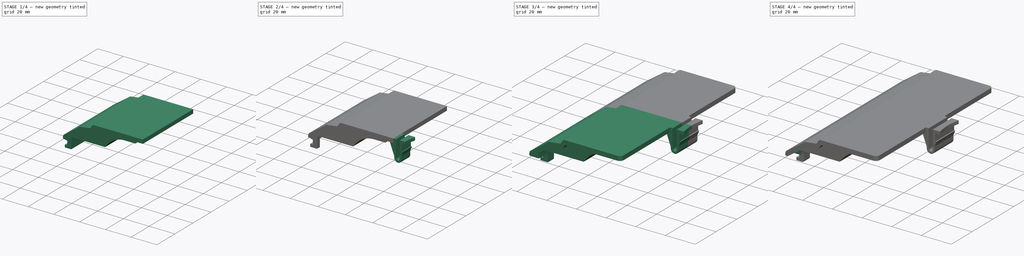
[diagram: build sequence overview — one tinted view per stage of 4, left to right]
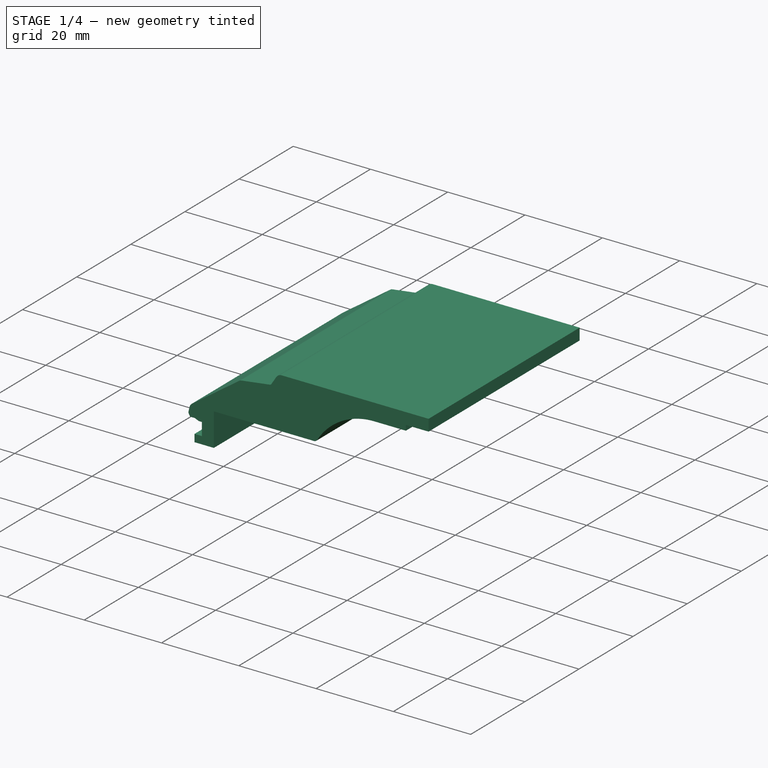
[diagram: stage 1 of 4 — iso view after this stage's code; geometry added in this stage tinted green]
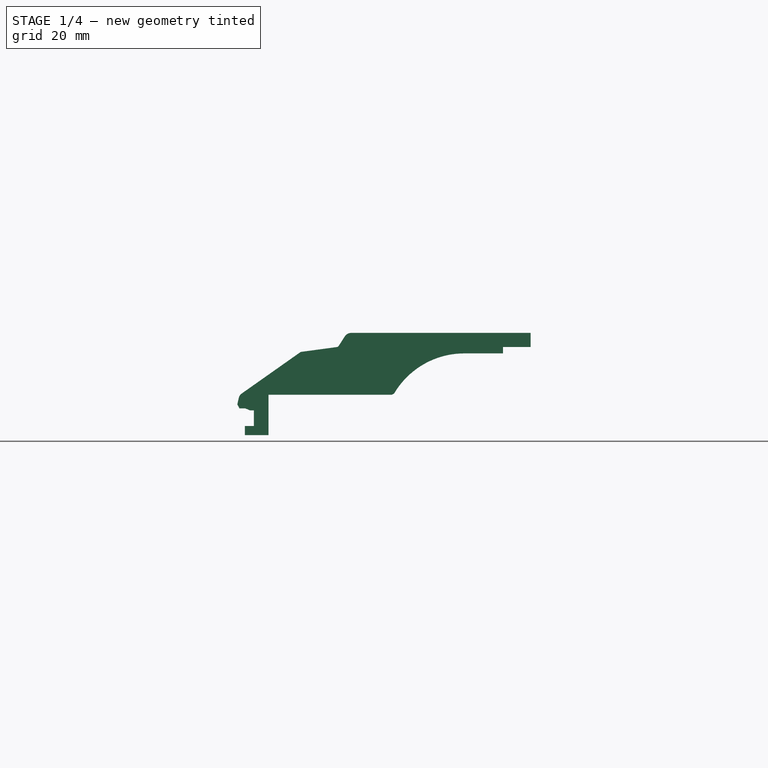
[diagram: stage 1 of 4 — front view after this stage's code; geometry added in this stage tinted green]
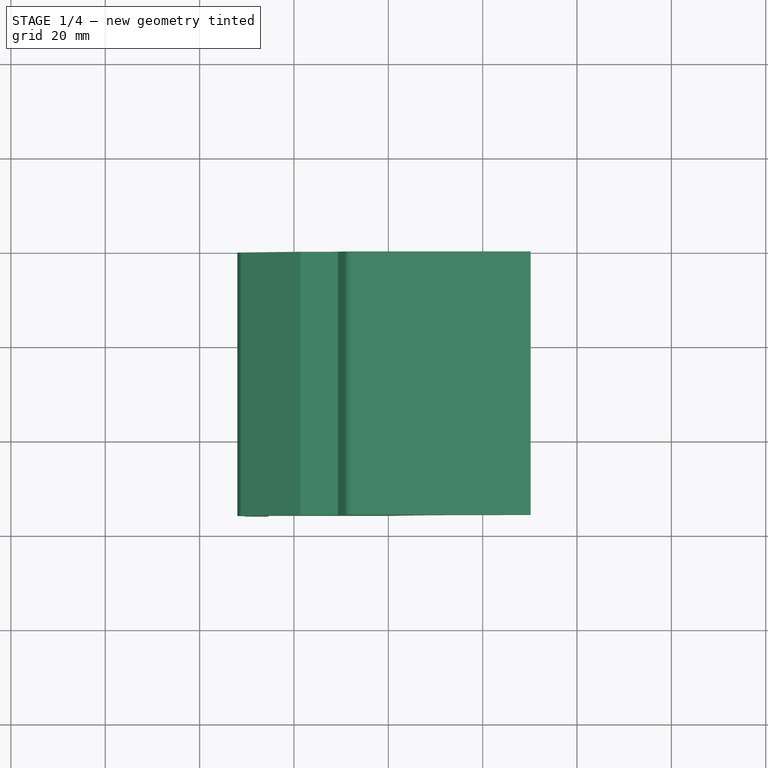
[diagram: stage 1 of 4 — top view after this stage's code; geometry added in this stage tinted green]
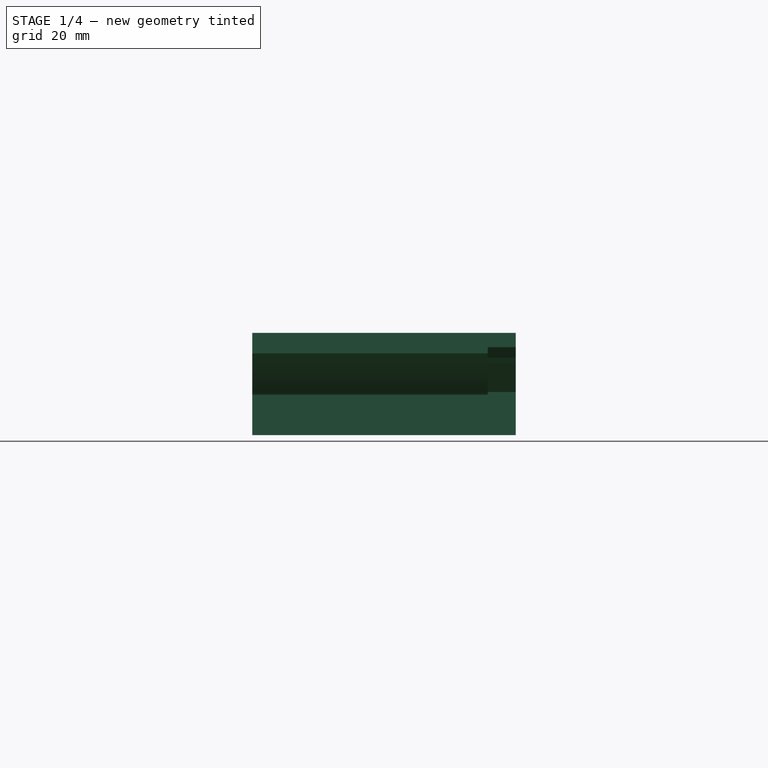
[diagram: stage 1 of 4 — right view after this stage's code; geometry added in this stage tinted green]
FCSTD DOCUMENT  (FreeCAD 0.20R29603 (Git))
Label: battery-cover-stock
License: All rights reserved
LicenseURL: http://en.wikipedia.org/wiki/All_rights_reserved
objects: Sketcher::SketchObject×10, PartDesign::Pocket×5, PartDesign::Pad×4, PartDesign::Mirrored×2, PartDesign::Fillet×2, Image::ImagePlane×1, PartDesign::Plane×1, PartDesign::Body×1
note: 36 computed .brp shape members not serialized (recipe doc carries the construction recipe); baked Part::Feature solids carry a one-line shape summary decoded from their .brp

FEATURE [Sketcher::SketchObject] Sketch
  FullyConstrained = true
  MapMode = 5
  Placement = pos=(0,0,0) rot=(1,0,0;1.5708rad)
  Support = -> [XZ_Plane]
  sketch-geometry (22):
    g0: LineSegment StartX=-7.83 StartY=0 StartZ=0 EndX=30.17 EndY=0 EndZ=0
    g1: LineSegment StartX=30.17 StartY=0 StartZ=0 EndX=30.17 EndY=-3 EndZ=0
    g2: LineSegment StartX=30.17 StartY=-3 StartZ=0 EndX=-7.08833 EndY=-3 EndZ=0
    g3: LineSegment StartX=-32 StartY=0 StartZ=0 EndX=-32 EndY=-16 EndZ=0
    g4: LineSegment StartX=-32 StartY=-16 StartZ=0 EndX=0 EndY=-16 EndZ=0
    g5: LineSegment StartX=-10.5 StartY=0 StartZ=0 EndX=-10.5 EndY=-16 EndZ=0
    g6: ArcOfCircle CenterX=-7.08833 CenterY=-3.58 CenterZ=0 NormalX=0 NormalY=0 NormalZ=1 AngleXU=0 Radius=0.58 StartAngle=1.5708 EndAngle=2.56563
    g7: ArcOfCircle CenterX=-7.83 CenterY=-1.665 CenterZ=0 NormalX=0 NormalY=0 NormalZ=1 AngleXU=0 Radius=1.665 StartAngle=1.5708 EndAngle=2.56563
    g8: LineSegment StartX=-9.22639 StartY=-0.758176 StartZ=0 EndX=-10.5373 EndY=-2.77683 EndZ=0
    g9: ArcOfCircle CenterX=-10.9566 CenterY=-2.50451 CenterZ=0 NormalX=0 NormalY=0 NormalZ=1 AngleXU=0 Radius=0.5 StartAngle=4.84678 EndAngle=5.70723
    g10: LineSegment StartX=-10.8897 StartY=-3 StartZ=0 EndX=-18.3321 EndY=-4.00626 EndZ=0
    g11: ArcOfCircle CenterX=-18.1981 CenterY=-4.99725 CenterZ=0 NormalX=0 NormalY=0 NormalZ=1 AngleXU=0 Radius=1 StartAngle=1.70519 EndAngle=2.18498
    g12: LineSegment StartX=-18.7744 StartY=-4.18 StartZ=0 EndX=-31.05 EndY=-12.8362 EndZ=0
    g13: ArcOfCircle CenterX=-30.1135 CenterY=-14.1643 CenterZ=0 NormalX=0 NormalY=0 NormalZ=1 AngleXU=0 Radius=1.625 StartAngle=2.18498 EndAngle=2.91941
    g14: LineSegment StartX=-31.6986 StartY=-13.8062 StartZ=0 EndX=-32 EndY=-15.1404 EndZ=0
    g15: LineSegment StartX=-30.3308 StartY=-16 StartZ=0 EndX=-31.5569 EndY=-16 EndZ=0
    g16: LineSegment StartX=-31.5569 StartY=-16 StartZ=0 EndX=-32 EndY=-15.1404 EndZ=0
    g17: LineSegment StartX=-30.3308 StartY=-16 StartZ=0 EndX=-16.8371 EndY=-6.48476 EndZ=0
    g18: LineSegment StartX=-16.616 StartY=-6.39789 StartZ=0 EndX=-9.16286 EndY=-5.39019 EndZ=0
    g19: LineSegment StartX=-7.57476 StartY=-3.26411 StartZ=0 EndX=-8.81052 EndY=-5.16701 EndZ=0
    g20: ArcOfCircle CenterX=-9.22986 CenterY=-4.89469 CenterZ=0 NormalX=0 NormalY=0 NormalZ=1 AngleXU=0 Radius=0.5 StartAngle=4.84678 EndAngle=5.70723
    g21: ArcOfCircle CenterX=-16.549 CenterY=-6.89338 CenterZ=0 NormalX=0 NormalY=0 NormalZ=1 AngleXU=0 Radius=0.5 StartAngle=1.70519 EndAngle=2.18498
  constraints (62):
    c: Horizontal(g0)
    c: Coincident(g1,g0)
    c: Vertical(g1)
    c: Coincident(g2,g1)
    c: Horizontal(g2)
    c: Vertical(g3)
    c: DistanceY(g1,g1) = 3
    c: Horizontal(g4)
    c: Distance(g4,g0) = 16
    c: PointOnObject(g0,g-1)
    c: Vertical(g5)
    c: DistanceX(g3,g5) = 21.5
    c: Tangent(g6,g2) = -1.5708
    c: Tangent(g7,g0) = 1.5708
    c: DistanceX(g0,g0) = 38
    c: DistanceX(g3,g-1) = 32
    c: Tangent(g8,g7) = -1.5708
    c: Diameter(g7) = 3.33
    c: Tangent(g9,g8) = 1.5708
    c: Angle(g8,g-1) = 2.14675
    c: Tangent(g10,g9) = 1.5708
    c: Diameter(g9) = 1
    c: Angle(g-1,g10) = 0.13439
    c: DistanceY(g9,g0) = 3
    c: Tangent(g11,g10) = -1.5708
    c: Tangent(g12,g11) = -1.5708
    c: Angle(g12,g-1) = 2.52741
    c: Diameter(g11) = 2
    c: DistanceY(g11,g0) = 4.18
    c: Tangent(g13,g12) = -1.5708
    c: Tangent(g14,g13) = -1.5708
    c: Angle(g14,g3) = 0.22218
    c: Diameter(g13) = 3.25
    c: DistanceX(g3,g12) = 0.95
    c: PointOnObject(g15,g4)
    c: PointOnObject(g15,g4)
    c: Coincident(g16,g15)
    c: Coincident(g14,g16)
    c: PointOnObject(g14,g3)
    c: Angle(g16,g14) = 2.44346
    c: Coincident(g17,g15)
    c: Parallel(g17,g12)
    c: Distance(g11,g17) = 3
    c: Tangent(g19,g6) = -1.5708
    c: Parallel(g18,g10)
    c: Parallel(g8,g19)
    c: Distance(g10,g18) = 2.6
    c: Distance(g8,g19) = 2.75
    c: Diameter(g6) = 1.16
    c: PointOnObject(g5,g-1)
    c: PointOnObject(g3,g-1)
    c: PointOnObject(g4,g3)
    c: PointOnObject(g3,g4)
    c: PointOnObject(g4,g-2)
    c: PointOnObject(g5,g4)
    c: Tangent(g18,g20) = -1.5708
    c: Tangent(g19,g20) = 1.5708
    c: Tangent(g17,g21) = 1.5708
    c: Tangent(g18,g21) = 1.5708
    c: Diameter(g21) = 1
    c: Diameter(g20) = 1
    c: DistanceX(g14,g0) = 24.17
FEATURE [Image::ImagePlane] ImagePlane
  Placement = pos=(0,0,-11.15) rot=(1,0,0;1.5708rad)
  XSize = 65.66
  YSize = 22.6
FEATURE [PartDesign::Pad] Pad
  Direction = (0,-1,-2e-16)
  Length = 55.83
  Length2 = 10
  Placement = pos=(0,0,0) rot=(1,0,0;1.5708rad)
  Profile = -> Sketch
  ReferenceAxis = -> Sketch [N_Axis]
  Type = 0
FEATURE [Sketcher::SketchObject] Sketch001
  ExternalGeometry = -> [Pad]
  FullyConstrained = true
  MapMode = 5
  Placement = pos=(0,-55.83,-1.24e-14) rot=(1,0,0;1.5708rad)
  Support = -> [Pad]
  sketch-geometry (8):
    g0: LineSegment StartX=-30.4 StartY=-21.67 StartZ=0 EndX=-25.4 EndY=-21.67 EndZ=0
    g1: LineSegment StartX=-30.4 StartY=-21.67 StartZ=0 EndX=-30.4 EndY=-19.73 EndZ=0
    g2: LineSegment StartX=-30.4 StartY=-19.73 StartZ=0 EndX=-28.5 EndY=-19.73 EndZ=0
    g3: LineSegment StartX=-28.5 StartY=-19.73 StartZ=0 EndX=-28.5 EndY=-16.43 EndZ=0
    g4: LineSegment StartX=-28.5 StartY=-16.43 StartZ=0 EndX=-29.3 EndY=-16.43 EndZ=0
    g5: LineSegment StartX=-29.3 StartY=-16.43 StartZ=0 EndX=-30.3308 EndY=-16 EndZ=0
    g6: LineSegment StartX=-25.4 StartY=-21.67 StartZ=0 EndX=-25.4 EndY=-12.523 EndZ=0
    g7: LineSegment StartX=-25.4 StartY=-12.523 StartZ=0 EndX=-30.3308 EndY=-16 EndZ=0
  constraints (23):
    c: Horizontal(g0)
    c: DistanceY(g0,g-3) = 5.67
    c: Coincident(g1,g0)
    c: Vertical(g1)
    c: Coincident(g2,g1)
    c: Horizontal(g2)
    c: Coincident(g3,g2)
    c: Vertical(g3)
    c: Coincident(g4,g3)
    c: Horizontal(g4)
    c: Coincident(g5,g4)
    c: Coincident(g5,g-4)
    c: DistanceX(g-6,g0) = 1.6
    c: DistanceY(g1,g1) = 1.94
    c: DistanceX(g0,g0) = 5
    c: Coincident(g6,g0)
    c: PointOnObject(g6,g-4)
    c: Vertical(g6)
    c: Coincident(g7,g6)
    c: Coincident(g7,g5)
    c: DistanceX(g2,g6) = 3.1
    c: DistanceX(g4,g4) = 0.8
    c: DistanceY(g3,g5) = 0.43
FEATURE [PartDesign::Pad] Pad001
  BaseFeature = -> Pad
  Direction = (0,-1,-2e-16)
  Length = 10
  Length2 = 10
  Placement = pos=(0,0,0) rot=(1,0,0;1.5708rad)
  Profile = -> Sketch001
  ReferenceAxis = -> Sketch001 [N_Axis]
  Reversed = true
  Type = 3
  UpToFace = -> Pad [Face20]
FEATURE [Sketcher::SketchObject] Sketch002
  ExternalGeometry = -> [Pad001]
  FullyConstrained = true
  MapMode = 5
  Placement = pos=(0,-55.83,-1.24e-14) rot=(1,0,0;1.5708rad)
  Support = -> [Pad001]
  sketch-geometry (13):
    g0: LineSegment StartX=-25.4 StartY=-13.12 StartZ=0 EndX=0.5 EndY=-13.12 EndZ=0
    g1: LineSegment StartX=-25.4 StartY=-13.12 StartZ=0 EndX=-25.4 EndY=-12.523 EndZ=0
    g2: LineSegment StartX=-25.4 StartY=-12.523 StartZ=0 EndX=-16.8371 EndY=-6.48476 EndZ=0
    g3: LineSegment StartX=-16.616 StartY=-6.39789 StartZ=0 EndX=-9.16286 EndY=-5.39019 EndZ=0
    g4: LineSegment StartX=-8.81052 StartY=-5.16701 StartZ=0 EndX=-7.57476 EndY=-3.26411 EndZ=0
    g5: LineSegment StartX=-7.08833 StartY=-3 StartZ=0 EndX=24.3 EndY=-3 EndZ=0
    g6: ArcOfCircle CenterX=-16.549 CenterY=-6.89338 CenterZ=0 NormalX=0 NormalY=0 NormalZ=1 AngleXU=0 Radius=0.5 StartAngle=1.70519 EndAngle=2.18498
    g7: ArcOfCircle CenterX=-9.22986 CenterY=-4.89469 CenterZ=0 NormalX=0 NormalY=0 NormalZ=1 AngleXU=0 Radius=0.5 StartAngle=4.84678 EndAngle=5.70723
    g8: ArcOfCircle CenterX=-7.08833 CenterY=-3.58 CenterZ=0 NormalX=0 NormalY=0 NormalZ=1 AngleXU=0 Radius=0.58 StartAngle=1.5708 EndAngle=2.56563
    g9: ArcOfCircle CenterX=16.1063 CenterY=-21.6208 CenterZ=0 NormalX=0 NormalY=0 NormalZ=1 AngleXU=0 Radius=17.2708 StartAngle=1.5708 EndAngle=2.59474
    g10: ArcOfCircle CenterX=0.5 CenterY=-12.12 CenterZ=0 NormalX=0 NormalY=0 NormalZ=1 AngleXU=0 Radius=1 StartAngle=4.71239 EndAngle=5.73633
    g11: LineSegment StartX=16.1063 StartY=-4.35 StartZ=0 EndX=24.3 EndY=-4.35 EndZ=0
    g12: LineSegment StartX=24.3 StartY=-4.35 StartZ=0 EndX=24.3 EndY=-3 EndZ=0
  constraints (34):
    c: PointOnObject(g0,g-10)
    c: Horizontal(g0)
    c: Coincident(g1,g0)
    c: Coincident(g1,g-10)
    c: Coincident(g2,g1)
    c: Coincident(g2,g-9)
    c: Coincident(g3,g-9)
    c: Coincident(g3,g-7)
    c: Coincident(g4,g-6)
    c: Coincident(g4,g-5)
    c: Coincident(g5,g-4)
    c: PointOnObject(g5,g-3)
    c: Coincident(g6,g-9)
    c: Coincident(g6,g2)
    c: Coincident(g6,g3)
    c: Coincident(g7,g-6)
    c: Coincident(g7,g3)
    c: Coincident(g7,g4)
    c: Coincident(g8,g-4)
    c: Coincident(g8,g4)
    c: Coincident(g8,g5)
    c: Tangent(g10,g9) = 1.5708
    c: Tangent(g10,g0) = -1.5708
    c: DistanceY(g0,g-1) = 13.12
    c: Diameter(g10) = 2
    c: DistanceX(g-11,g10) = 32.5
    c: DistanceY(g9,g10) = 0.52
    c: Horizontal(g11)
    c: Tangent(g11,g9) = 1.5708
    c: Coincident(g12,g11)
    c: Coincident(g12,g5)
    c: Vertical(g12)
    c: DistanceX(g5,g-3) = 5.87
    c: DistanceY(g11,g-1) = 4.35
FEATURE [PartDesign::Pad] Pad002
  BaseFeature = -> Pad001
  Direction = (0,-1,-2e-16)
  Length = 49.9
  Length2 = 10
  Placement = pos=(0,0,0) rot=(1,0,0;1.5708rad)
  Profile = -> Sketch002
  ReferenceAxis = -> Sketch002 [N_Axis]
  Reversed = true
  Type = 0
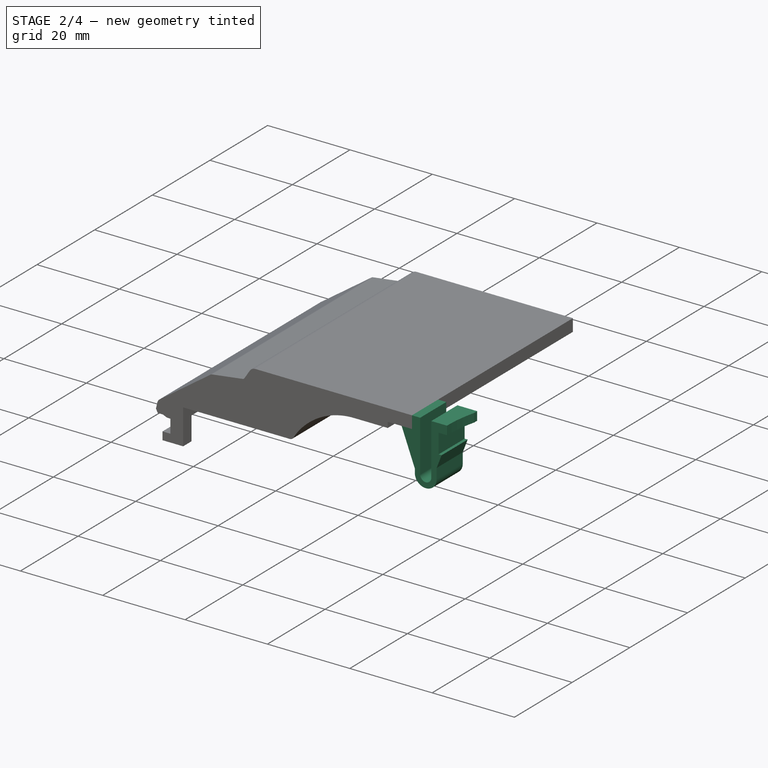
[diagram: stage 2 of 4 — iso view after this stage's code; geometry added in this stage tinted green]
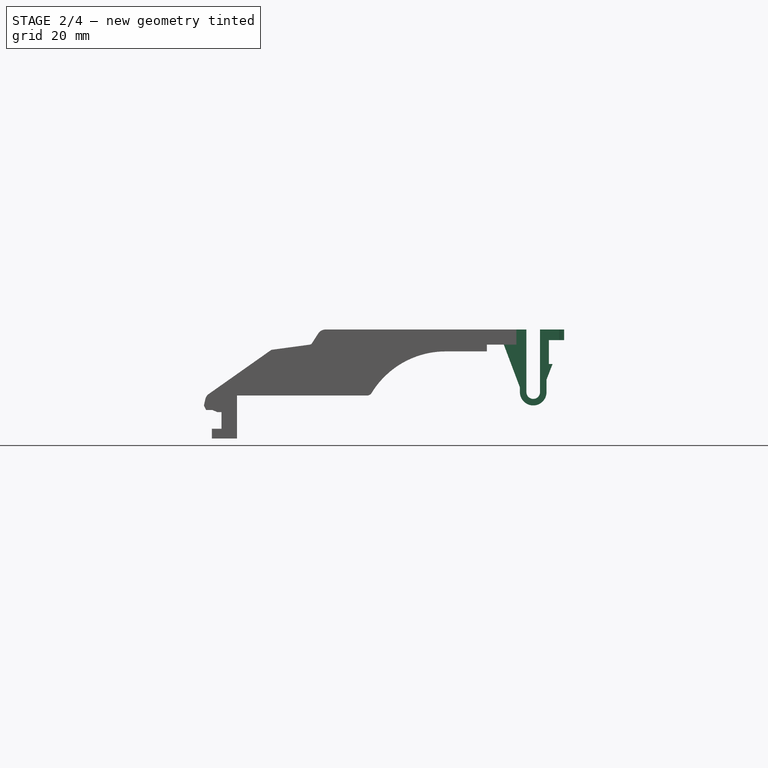
[diagram: stage 2 of 4 — front view after this stage's code; geometry added in this stage tinted green]
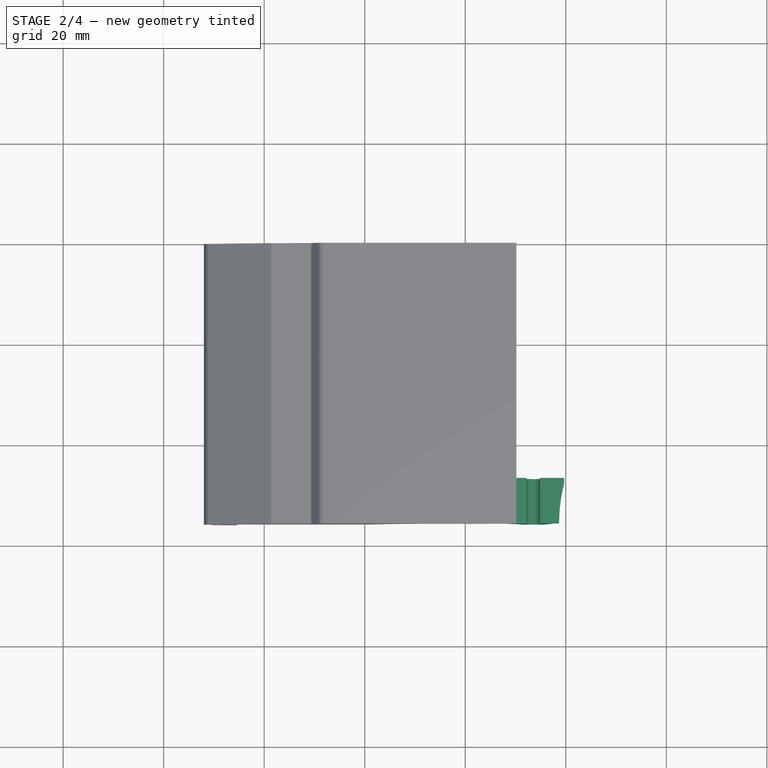
[diagram: stage 2 of 4 — top view after this stage's code; geometry added in this stage tinted green]
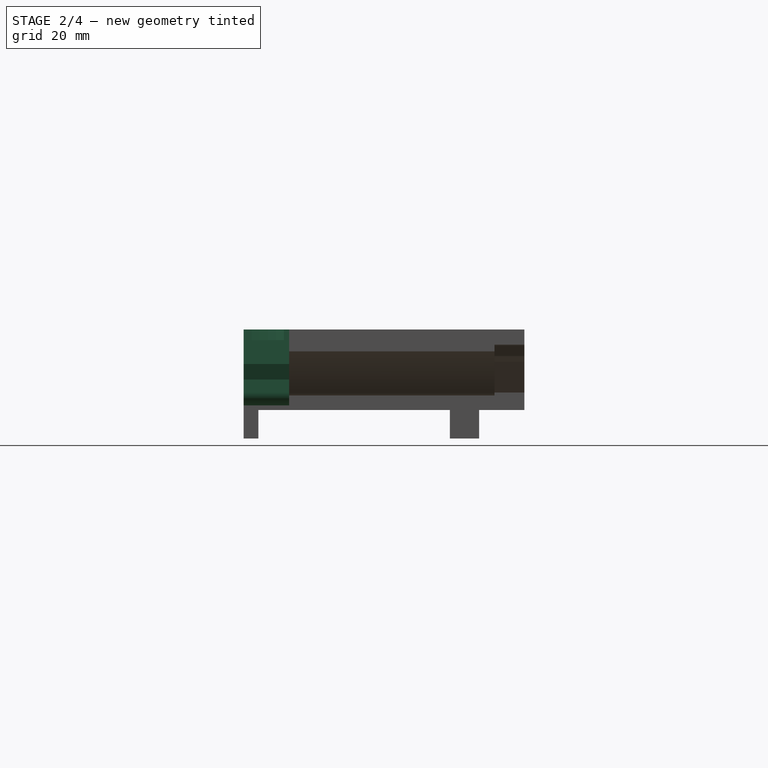
[diagram: stage 2 of 4 — right view after this stage's code; geometry added in this stage tinted green]
FEATURE [Sketcher::SketchObject] Sketch003
  ExternalGeometry = -> [Pad002]
  FullyConstrained = true
  MapMode = 5
  Placement = pos=(0,0,0) rot=(-1,0,0;1.5708rad)
  Support = -> [Pad002]
  sketch-geometry (17):
    g0: LineSegment StartX=30.17 StartY=0 StartZ=0 EndX=32.17 EndY=0 EndZ=0
    g1: LineSegment StartX=27.67 StartY=3 StartZ=0 EndX=30.17 EndY=3 EndZ=0
    g2: LineSegment StartX=30.17 StartY=0 StartZ=0 EndX=30.17 EndY=3 EndZ=0
    g3: LineSegment StartX=27.67 StartY=3 StartZ=0 EndX=30.87 EndY=11.5 EndZ=0
    g4: LineSegment StartX=30.87 StartY=11.5 StartZ=0 EndX=30.87 EndY=12.45 EndZ=0
    g5: ArcOfCircle CenterX=33.52 CenterY=12.45 CenterZ=0 NormalX=0 NormalY=0 NormalZ=1 AngleXU=0 Radius=2.65 StartAngle=0 EndAngle=3.14159
    g6: ArcOfCircle CenterX=33.52 CenterY=12.45 CenterZ=0 NormalX=0 NormalY=0 NormalZ=1 AngleXU=0 Radius=1.35 StartAngle=0 EndAngle=3.14159
    g7: LineSegment StartX=32.17 StartY=12.45 StartZ=0 EndX=32.17 EndY=0 EndZ=0
    g8: LineSegment StartX=34.87 StartY=12.45 StartZ=0 EndX=34.87 EndY=0 EndZ=0
    g9: LineSegment StartX=36.17 StartY=12.45 StartZ=0 EndX=36.17 EndY=9.95 EndZ=0
    g10: LineSegment StartX=36.17 StartY=9.95 StartZ=0 EndX=37.37 EndY=6.85 EndZ=0
    g11: LineSegment StartX=37.37 StartY=6.85 StartZ=0 EndX=36.64 EndY=6.85 EndZ=0
    g12: LineSegment StartX=36.64 StartY=6.85 StartZ=0 EndX=36.64 EndY=2.1 EndZ=0
    g13: LineSegment StartX=36.64 StartY=2.1 StartZ=0 EndX=39.67 EndY=2.1 EndZ=0
    g14: LineSegment StartX=39.67 StartY=2.1 StartZ=0 EndX=39.67 EndY=0 EndZ=0
    g15: LineSegment StartX=39.67 StartY=0 StartZ=0 EndX=34.87 EndY=0 EndZ=0
    g16: LineSegment StartX=33.52 StartY=15.1 StartZ=0 EndX=32.17 EndY=15.1 EndZ=0
  constraints (47):
    c: Coincident(g0,g-3)
    c: PointOnObject(g0,g-1)
    c: PointOnObject(g1,g-4)
    c: Coincident(g1,g-4)
    c: Coincident(g2,g0)
    c: Coincident(g2,g1)
    c: Coincident(g3,g1)
    c: Coincident(g4,g3)
    c: Vertical(g4)
    c: Tangent(g5,g4) = 1.5708
    c: Coincident(g6,g5)
    c: DistanceX(g4,g6) = 1.3
    c: Diameter(g6) = 2.7
    c: Vertical(g7)
    c: Tangent(g7,g6) = -1.5708
    c: Vertical(g8)
    c: Tangent(g8,g6) = 1.5708
    c: Coincident(g7,g0)
    c: Vertical(g9)
    c: Coincident(g10,g9)
    c: Coincident(g11,g10)
    c: Horizontal(g11)
    c: Coincident(g12,g11)
    c: Vertical(g12)
    c: Coincident(g13,g12)
    c: Horizontal(g13)
    c: Coincident(g14,g13)
    c: Vertical(g14)
    c: Coincident(g15,g14)
    c: PointOnObject(g15,g-1)
    c: Horizontal(g15)
    c: Coincident(g8,g15)
    c: DistanceY(g1,g3) = 8.5
    c: PointOnObject(g16,g5)
    c: Horizontal(g16)
    c: Tangent(g16,g5)
    c: PointOnObject(g16,g7)
    c: DistanceX(g0,g0) = 2
    c: DistanceX(g15,g15) = 4.8
    c: DistanceY(g14,g14) = 2.1
    c: DistanceX(g1,g1) = 2.5
    c: DistanceY(g0,g16) = 15.1
    c: Tangent(g9,g5) = 1.5708
    c: DistanceY(g8,g11) = 6.85
    c: DistanceX(g8,g10) = 2.5
    c: DistanceX(g8,g12) = 1.77
    c: DistanceY(g9,g9) = 2.5
FEATURE [Sketcher::SketchObject] Sketch004
  ExternalGeometry = -> [Sketch003,Pad002]
  FullyConstrained = true
  MapMode = 5
  Placement = pos=(0,-55.83,-1.24e-14) rot=(1,0,0;1.5708rad)
  Support = -> [Pad002]
  sketch-geometry (16):
    g0: ArcOfCircle CenterX=33.52 CenterY=-12.45 CenterZ=0 NormalX=0 NormalY=0 NormalZ=1 AngleXU=0 Radius=1.35 StartAngle=3.14159 EndAngle=6.28319
    g1: ArcOfCircle CenterX=33.52 CenterY=-12.45 CenterZ=0 NormalX=0 NormalY=0 NormalZ=1 AngleXU=0 Radius=2.65 StartAngle=3.14159 EndAngle=6.28319
    g2: LineSegment StartX=34.87 StartY=-12.45 StartZ=0 EndX=34.87 EndY=0 EndZ=0
    g3: LineSegment StartX=32.17 StartY=-12.45 StartZ=0 EndX=32.17 EndY=0 EndZ=0
    g4: LineSegment StartX=32.17 StartY=0 StartZ=0 EndX=30.17 EndY=0 EndZ=0
    g5: LineSegment StartX=30.17 StartY=0 StartZ=0 EndX=30.17 EndY=-3 EndZ=0
    g6: LineSegment StartX=30.17 StartY=-3 StartZ=0 EndX=27.67 EndY=-3 EndZ=0
    g7: LineSegment StartX=27.67 StartY=-3 StartZ=0 EndX=30.87 EndY=-11.5 EndZ=0
    g8: LineSegment StartX=30.87 StartY=-11.5 StartZ=0 EndX=30.87 EndY=-12.45 EndZ=0
    g9: LineSegment StartX=36.17 StartY=-12.45 StartZ=0 EndX=36.17 EndY=-9.95 EndZ=0
    g10: LineSegment StartX=36.17 StartY=-9.95 StartZ=0 EndX=37.37 EndY=-6.85 EndZ=0
    g11: LineSegment StartX=37.37 StartY=-6.85 StartZ=0 EndX=36.64 EndY=-6.85 EndZ=0
    g12: LineSegment StartX=36.64 StartY=-6.85 StartZ=0 EndX=36.64 EndY=-2.1 EndZ=0
    g13: LineSegment StartX=36.64 StartY=-2.1 StartZ=0 EndX=39.67 EndY=-2.1 EndZ=0
    g14: LineSegment StartX=39.67 StartY=-2.1 StartZ=0 EndX=39.67 EndY=0 EndZ=0
    g15: LineSegment StartX=39.67 StartY=0 StartZ=0 EndX=34.87 EndY=0 EndZ=0
  constraints (34):
    c: Coincident(g0,g-3)
    c: Coincident(g0,g-3)
    c: Coincident(g1,g0)
    c: Coincident(g1,g-4)
    c: Coincident(g2,g0)
    c: PointOnObject(g2,g-1)
    c: Vertical(g2)
    c: PointOnObject(g3,g-1)
    c: Vertical(g3)
    c: Coincident(g4,g3)
    c: Coincident(g4,g-6)
    c: Coincident(g5,g4)
    c: Coincident(g5,g-6)
    c: Coincident(g6,g5)
    c: Coincident(g6,g-5)
    c: Coincident(g7,g6)
    c: Coincident(g7,g-5)
    c: Coincident(g8,g7)
    c: Coincident(g8,g1)
    c: Coincident(g9,g-9)
    c: Coincident(g10,g9)
    c: Coincident(g10,g-9)
    c: Coincident(g11,g10)
    c: Coincident(g11,g-8)
    c: Coincident(g12,g11)
    c: Coincident(g12,g-8)
    c: Coincident(g13,g12)
    c: Coincident(g13,g-7)
    c: Coincident(g14,g13)
    c: Coincident(g14,g-7)
    c: Coincident(g15,g14)
    c: Coincident(g15,g2)
    c: Tangent(g3,g0) = 1.5708
    c: Tangent(g9,g1) = -1.5708
FEATURE [PartDesign::Pad] Pad003
  BaseFeature = -> Pad002
  Direction = (0,-1,-2e-16)
  Length = 9.05
  Length2 = 10
  Placement = pos=(0,0,0) rot=(1,0,0;1.5708rad)
  Profile = -> Sketch004
  ReferenceAxis = -> Sketch004 [N_Axis]
  Reversed = true
  Type = 0
FEATURE [Sketcher::SketchObject] Sketch005
  ExternalGeometry = -> [Pad003]
  FullyConstrained = true
  MapMode = 5
  Placement = pos=(0,4.8e-15,-21.67) rot=(1,0,0;3.14159rad)
  Support = -> [Pad003]
  sketch-geometry (16):
    g0: LineSegment StartX=-32 StartY=55.83 StartZ=0 EndX=-24 EndY=55.83 EndZ=0
    g1: LineSegment StartX=-24 StartY=55.83 StartZ=0 EndX=-24 EndY=52.915 EndZ=0
    g2: LineSegment StartX=-24 StartY=52.915 StartZ=0 EndX=-32 EndY=52.915 EndZ=0
    g3: LineSegment StartX=-32 StartY=52.915 StartZ=0 EndX=-32 EndY=55.83 EndZ=0
    g4: LineSegment StartX=-32 StartY=14.815 StartZ=0 EndX=-24 EndY=14.815 EndZ=0
    g5: LineSegment StartX=-24 StartY=14.815 StartZ=0 EndX=-24 EndY=8.985 EndZ=0
    g6: LineSegment StartX=-24 StartY=8.985 StartZ=0 EndX=-32 EndY=8.985 EndZ=0
    g7: LineSegment StartX=-32 StartY=8.985 StartZ=0 EndX=-32 EndY=14.815 EndZ=0
    g8: LineSegment StartX=-32 StartY=52.915 StartZ=0 EndX=-24 EndY=52.915 EndZ=0
    g9: LineSegment StartX=-24 StartY=52.915 StartZ=0 EndX=-24 EndY=14.815 EndZ=0
    g10: LineSegment StartX=-24 StartY=14.815 StartZ=0 EndX=-32 EndY=14.815 EndZ=0
    g11: LineSegment StartX=-32 StartY=14.815 StartZ=0 EndX=-32 EndY=52.915 EndZ=0
    g12: LineSegment StartX=-24 StartY=8.985 StartZ=0 EndX=-32 EndY=8.985 EndZ=0
    g13: LineSegment StartX=-32 StartY=8.985 StartZ=0 EndX=-32 EndY=0 EndZ=0
    g14: LineSegment StartX=-32 StartY=0 StartZ=0 EndX=-24 EndY=0 EndZ=0
    g15: LineSegment StartX=-24 StartY=0 StartZ=0 EndX=-24 EndY=8.985 EndZ=0
  constraints (44):
    c: Coincident(g0,g1)
    c: Coincident(g1,g2)
    c: Coincident(g2,g3)
    c: Coincident(g3,g0)
    c: Horizontal(g0)
    c: Horizontal(g2)
    c: Vertical(g1)
    c: Vertical(g3)
    c: PointOnObject(g0,g-3)
    c: Coincident(g4,g5)
    c: Coincident(g5,g6)
    c: Coincident(g6,g7)
    c: Coincident(g7,g4)
    c: Horizontal(g4)
    c: Horizontal(g6)
    c: Vertical(g5)
    c: Vertical(g7)
    c: PointOnObject(g4,g-3)
    c: PointOnObject(g4,g1)
    c: PointOnObject(g-3,g0)
    c: DistanceY(g1,g1) = 2.915
    c: DistanceY(g5,g5) = 5.83
    c: DistanceX(g2,g2) = 8
    c: DistanceY(g4,g2) = 38.1
    c: Coincident(g8,g9)
    c: Coincident(g9,g10)
    c: Coincident(g10,g11)
    c: Coincident(g11,g8)
    c: Horizontal(g8)
    c: Horizontal(g10)
    c: Vertical(g9)
    c: Vertical(g11)
    c: Coincident(g8,g2)
    c: Coincident(g9,g4)
    c: Coincident(g12,g13)
    c: Coincident(g13,g14)
    c: Coincident(g14,g15)
    c: Coincident(g15,g12)
    c: Horizontal(g12)
    c: Horizontal(g14)
    c: Vertical(g13)
    c: Vertical(g15)
    c: Coincident(g12,g5)
    c: Coincident(g13,g-3)
FEATURE [PartDesign::Pocket] Pocket
  BaseFeature = -> Pad003
  Direction = (0,-2e-16,1)
  Length = 0
  Length2 = 5
  Placement = pos=(0,0,0) rot=(1,0,0;1.5708rad)
  Profile = -> Sketch005
  ReferenceAxis = -> Sketch005 [N_Axis]
  Type = 3
  UpToFace = -> Pad003 [Face1]
FEATURE [Sketcher::SketchObject] Sketch006
  ExternalGeometry = -> [Pocket]
  FullyConstrained = true
  MapMode = 5
  Placement = pos=(0,0,0) rot=(0,0,1;3.14159rad)
  Support = -> [Pocket]
  sketch-geometry (4):
    g0: ArcOfCircle CenterX=-71.17 CenterY=55.83 CenterZ=0 NormalX=0 NormalY=0 NormalZ=1 AngleXU=0 Radius=32.5 StartAngle=6.03448 EndAngle=6.28319
    g1: LineSegment StartX=-38.67 StartY=55.83 StartZ=0 EndX=-38.67 EndY=51.03 EndZ=0
    g2: LineSegment StartX=-39.67 StartY=55.83 StartZ=0 EndX=-38.67 EndY=55.83 EndZ=0
    g3: LineSegment StartX=-39.67 StartY=55.83 StartZ=0 EndX=-39.67 EndY=47.83 EndZ=0
  constraints (11):
    c: PointOnObject(g0,g-3)
    c: Vertical(g1)
    c: Equal(g1,g-3)
    c: Tangent(g1,g0) = 1.5708
    c: Coincident(g2,g-3)
    c: Coincident(g2,g0)
    c: Coincident(g3,g2)
    c: Coincident(g3,g0)
    c: Vertical(g3)
    c: DistanceY(g3,g3) = 8
    c: DistanceX(g2,g2) = 1
FEATURE [PartDesign::Pocket] Pocket001
  BaseFeature = -> Pocket
  Direction = (0,2e-16,-1)
  Length = 5
  Length2 = 5
  Placement = pos=(0,0,0) rot=(1,0,0;1.5708rad)
  Profile = -> Sketch006
  ReferenceAxis = -> Sketch006 [N_Axis]
  Type = 1
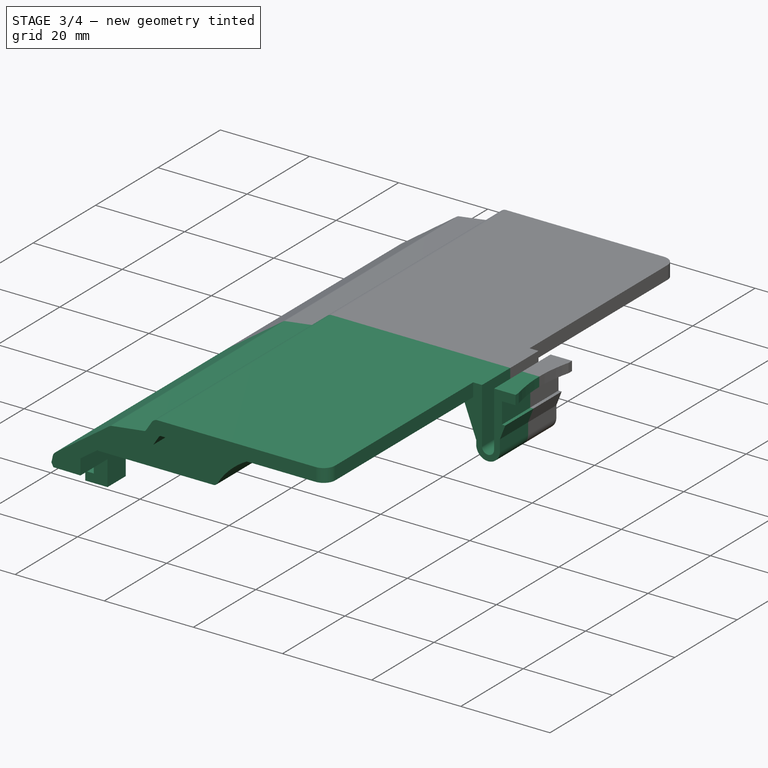
[diagram: stage 3 of 4 — iso view after this stage's code; geometry added in this stage tinted green]
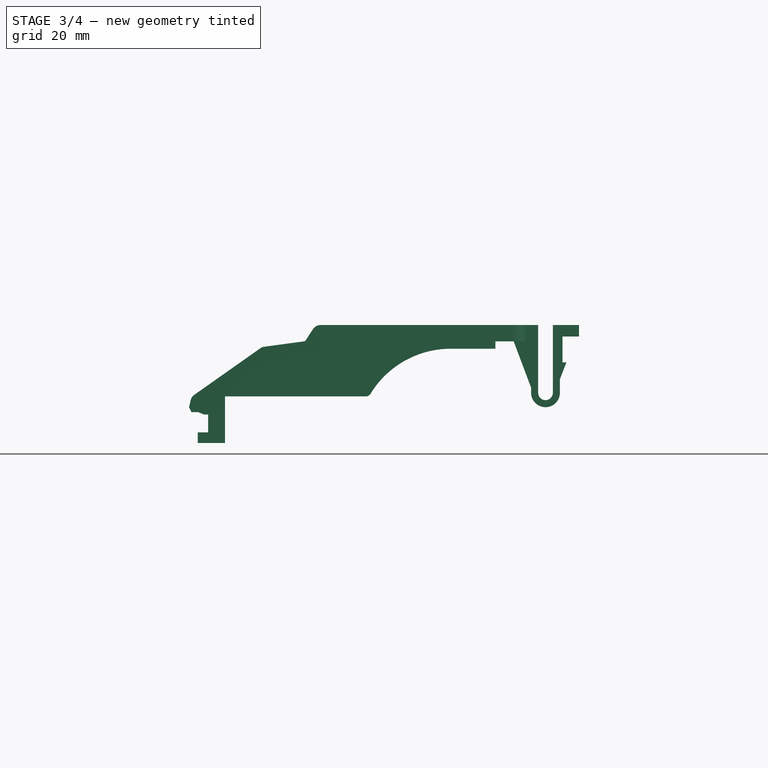
[diagram: stage 3 of 4 — front view after this stage's code; geometry added in this stage tinted green]
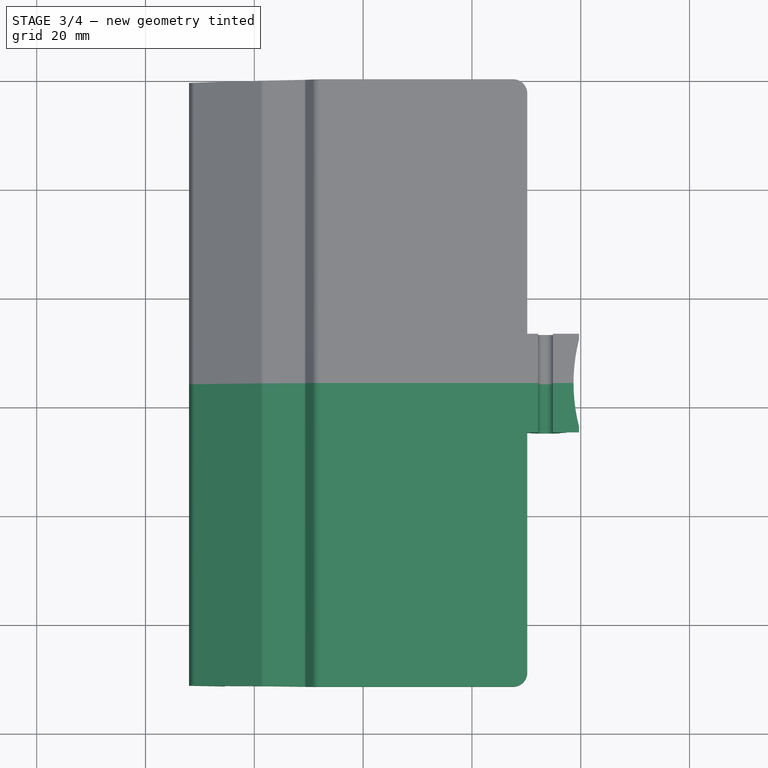
[diagram: stage 3 of 4 — top view after this stage's code; geometry added in this stage tinted green]
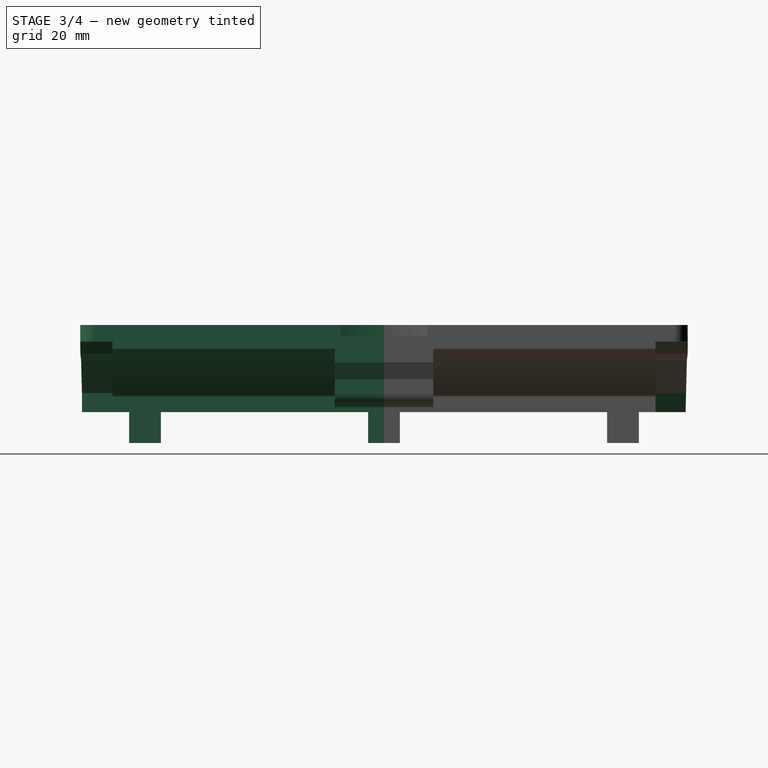
[diagram: stage 3 of 4 — right view after this stage's code; geometry added in this stage tinted green]
FEATURE [PartDesign::Plane] DatumPlane
  Length = 83.6425
  MapMode = 5
  Placement = pos=(0,-55.83,-1.24e-14) rot=(1,0,0;1.5708rad)
  ResizeMode = 0
  Support = -> [Pocket001]
  Width = 61.9725
FEATURE [PartDesign::Mirrored] Mirrored
  BaseFeature = -> Pocket001
  MirrorPlane = -> DatumPlane
  Originals = -> [Pocket001,Pad,Pad001,Pad002,Pad003,Pocket]
  Placement = pos=(0,0,0) rot=(1,0,0;1.5708rad)
FEATURE [Sketcher::SketchObject] Sketch007
  ExternalGeometry = -> [Mirrored]
  FullyConstrained = true
  MapMode = 5
  Placement = pos=(3e-16,5e-16,-2.1) rot=(1,0,0;3.14159rad)
  Support = -> [Mirrored]
  sketch-geometry (2):
    g0: ArcOfCircle CenterX=71.17 CenterY=55.83 CenterZ=0 NormalX=0 NormalY=0 NormalZ=1 AngleXU=0 Radius=32.5 StartAngle=2.89288 EndAngle=3.3903
    g1: LineSegment StartX=39.67 StartY=63.83 StartZ=0 EndX=39.67 EndY=47.83 EndZ=0
  constraints (5):
    c: Coincident(g0,g-3)
    c: Coincident(g0,g-3)
    c: PointOnObject(g0,g-4)
    c: Coincident(g1,g0)
    c: Coincident(g1,g0)
FEATURE [PartDesign::Pocket] Pocket002
  BaseFeature = -> Mirrored
  Direction = (-1e-16,-2e-16,1)
  Length = 5
  Length2 = 5
  Placement = pos=(0,0,0) rot=(1,0,0;1.5708rad)
  Profile = -> Sketch007
  ReferenceAxis = -> Sketch007 [N_Axis]
  Type = 1
FEATURE [Sketcher::SketchObject] Sketch008
  ExternalGeometry = -> [Pocket002]
  FullyConstrained = true
  MapMode = 5
  Support = -> [XY_Plane]
  sketch-geometry (15):
    g0: ArcOfCircle CenterX=27.57 CenterY=-2.6 CenterZ=0 NormalX=0 NormalY=0 NormalZ=1 AngleXU=0 Radius=2.6 StartAngle=2e-16 EndAngle=1.5708
    g1: ArcOfCircle CenterX=27.57 CenterY=-109.06 CenterZ=0 NormalX=0 NormalY=0 NormalZ=1 AngleXU=0 Radius=2.6 StartAngle=4.71239 EndAngle=6.28319
    g2: LineSegment StartX=27.57 StartY=-111.66 StartZ=0 EndX=30.17 EndY=-111.66 EndZ=0
    g3: LineSegment StartX=30.17 StartY=-111.66 StartZ=0 EndX=30.17 EndY=-109.06 EndZ=0
    g4: LineSegment StartX=27.57 StartY=-4.21587e-11 StartZ=0 EndX=30.17 EndY=0 EndZ=0
    g5: LineSegment StartX=30.17 StartY=0 StartZ=0 EndX=30.17 EndY=-2.6 EndZ=0
    g6: LineSegment StartX=-32 StartY=-0.43 StartZ=0 EndX=-7.83 EndY=1e-16 EndZ=0
    g7: LineSegment StartX=-32 StartY=-111.23 StartZ=0 EndX=-7.83 EndY=-111.66 EndZ=0
    g8: LineSegment StartX=-32 StartY=-55.83 StartZ=0 EndX=-32 EndY=-0.43 EndZ=0
    g9: LineSegment StartX=-32 StartY=-55.83 StartZ=0 EndX=-32 EndY=-111.23 EndZ=0
    g10: LineSegment StartX=-7.83 StartY=1e-16 StartZ=0 EndX=-7.83 EndY=1.67 EndZ=0
    g11: LineSegment StartX=-7.83 StartY=1.67 StartZ=0 EndX=-33.83 EndY=1.67 EndZ=0
    g12: LineSegment StartX=-33.83 StartY=1.67 StartZ=0 EndX=-33.83 EndY=-113.33 EndZ=0
    g13: LineSegment StartX=-33.83 StartY=-113.33 StartZ=0 EndX=-7.83 EndY=-113.33 EndZ=0
    g14: LineSegment StartX=-7.83 StartY=-113.33 StartZ=0 EndX=-7.83 EndY=-111.66 EndZ=0
  constraints (38):
    c: Tangent(g1,g-5) = -1.5708
    c: Tangent(g1,g-4) = -1.5708
    c: Tangent(g0,g-1) = 1.5708
    c: Tangent(g0,g-3) = 1.5708
    c: Equal(g0,g1)
    c: Diameter(g1) = 5.2
    c: Coincident(g2,g1)
    c: Coincident(g2,g-5)
    c: Coincident(g3,g2)
    c: Coincident(g3,g1)
    c: Coincident(g4,g0)
    c: Coincident(g4,g-3)
    c: Coincident(g5,g4)
    c: Coincident(g5,g0)
    c: Coincident(g8,g-6)
    c: Coincident(g8,g6)
    c: Coincident(g9,g8)
    c: Coincident(g9,g7)
    c: Equal(g9,g8)
    c: Vertical(g8)
    c: Vertical(g9)
    c: DistanceY(g7,g6) = 110.8
    c: Coincident(g6,g-7)
    c: Coincident(g7,g-8)
    c: Coincident(g10,g6)
    c: Vertical(g10)
    c: Coincident(g11,g10)
    c: Horizontal(g11)
    c: Coincident(g12,g11)
    c: Vertical(g12)
    c: Coincident(g13,g12)
    c: Horizontal(g13)
    c: Coincident(g14,g13)
    c: Coincident(g14,g7)
    c: Vertical(g14)
    c: Equal(g10,g14)
    c: DistanceX(g11,g11) = 26
    c: DistanceY(g12,g12) = 115
FEATURE [PartDesign::Pocket] Pocket003
  BaseFeature = -> Pocket002
  Direction = (0,0,-1)
  Length = 5
  Length2 = 5
  Placement = pos=(0,0,0) rot=(1,0,0;1.5708rad)
  Profile = -> Sketch008
  ReferenceAxis = -> Sketch008 [N_Axis]
  Type = 1
FEATURE [Sketcher::SketchObject] Sketch009
  ExternalGeometry = -> [Pocket003]
  FullyConstrained = true
  MapMode = 5
  Placement = pos=(-0.00247747,0.139257,0) rot=(-0.999921,-0.008894,0.008894;1.57088rad)
  Support = -> [Pocket003]
  sketch-geometry (3):
    g0: LineSegment StartX=-25.4015 StartY=12.523 StartZ=0 EndX=-30.3332 EndY=16 EndZ=0
    g1: LineSegment StartX=-30.3332 StartY=16 StartZ=0 EndX=-25.4015 EndY=16 EndZ=0
    g2: LineSegment StartX=-25.4015 StartY=16 StartZ=0 EndX=-25.4015 EndY=12.523 EndZ=0
  constraints (6):
    c: Coincident(g0,g-4)
    c: Coincident(g0,g-3)
    c: Coincident(g1,g0)
    c: Coincident(g1,g-4)
    c: Coincident(g2,g1)
    c: Coincident(g2,g0)
FEATURE [PartDesign::Pocket] Pocket004
  BaseFeature = -> Pocket003
  Direction = (0,-1,-2e-16)
  Length = 0
  Length2 = 5
  Placement = pos=(0,0,0) rot=(1,0,0;1.5708rad)
  Profile = -> Sketch009
  ReferenceAxis = -> Pocket003 [Edge230]
  Type = 3
  UpToFace = -> Pocket003 [Face52]
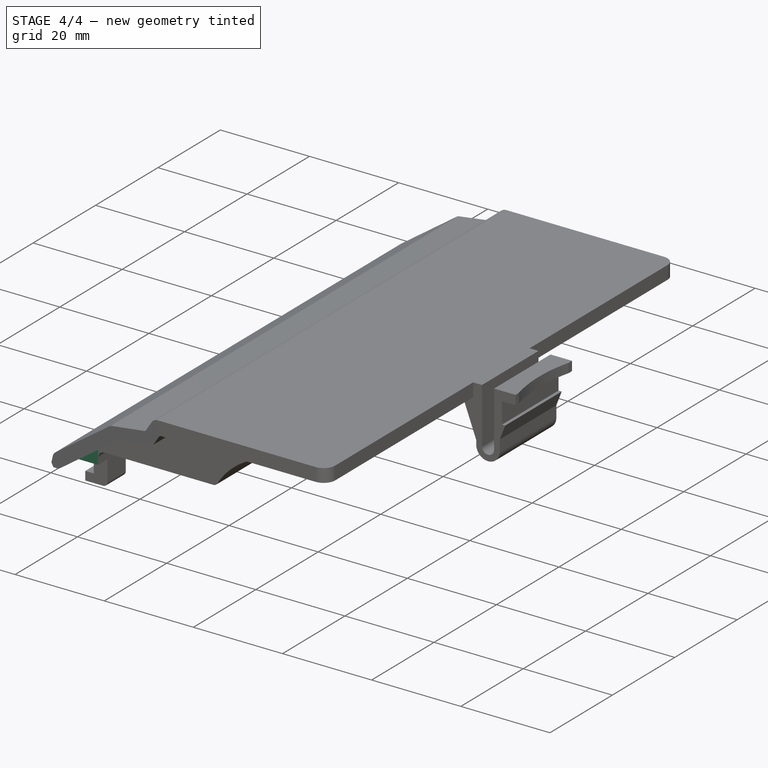
[diagram: stage 4 of 4 — iso view after this stage's code; geometry added in this stage tinted green]
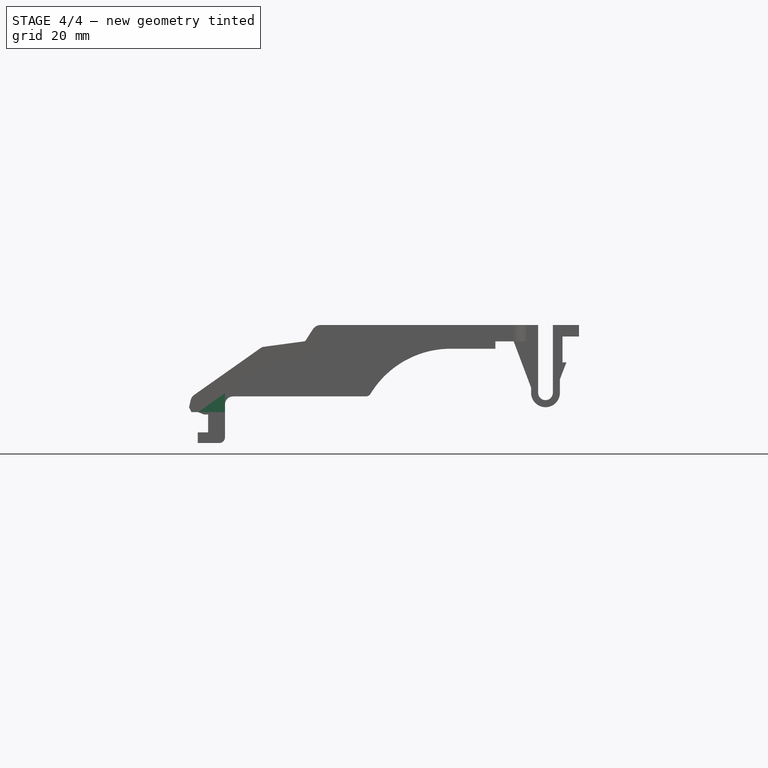
[diagram: stage 4 of 4 — front view after this stage's code; geometry added in this stage tinted green]
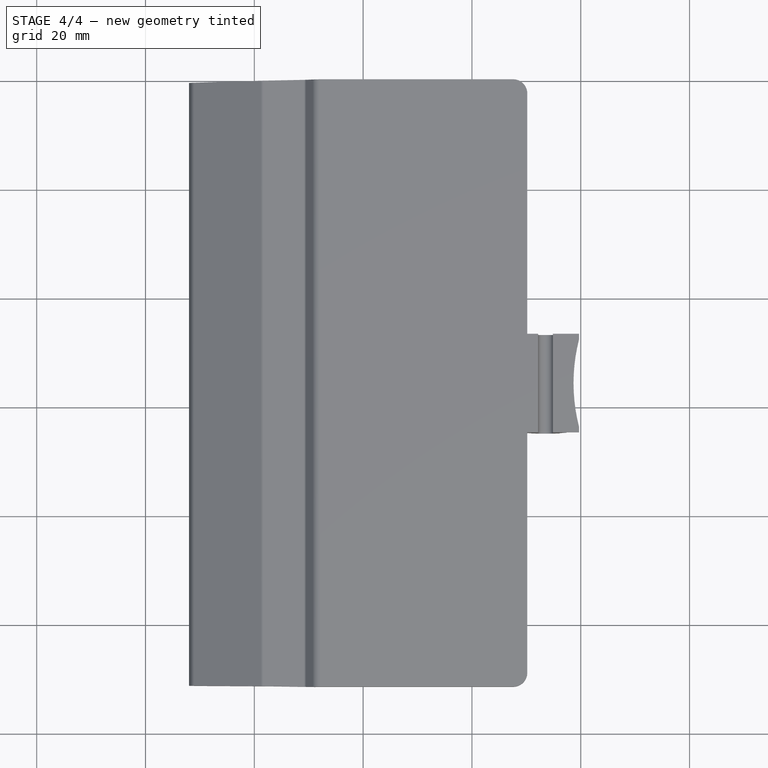
[diagram: stage 4 of 4 — top view after this stage's code; geometry added in this stage tinted green]
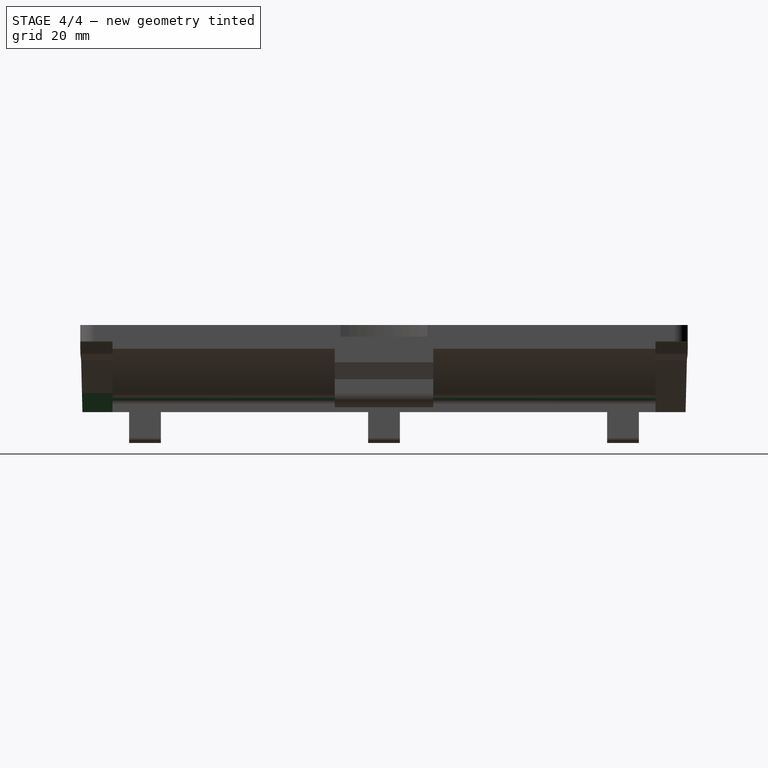
[diagram: stage 4 of 4 — right view after this stage's code; geometry added in this stage tinted green]
FEATURE [PartDesign::Fillet] Fillet
  Base = -> Pocket004 [Edge231,Edge172]
  BaseFeature = -> Pocket004
  Placement = pos=(0,0,0) rot=(1,0,0;1.5708rad)
  Radius = 1.5
  SupportTransform = false
  UseAllEdges = false
FEATURE [PartDesign::Fillet] Fillet001
  Base = -> Fillet [Edge72,Edge65,Edge24,Edge30]
  BaseFeature = -> Fillet
  Placement = pos=(0,0,0) rot=(1,0,0;1.5708rad)
  Radius = 1
  SupportTransform = false
  UseAllEdges = false
FEATURE [PartDesign::Mirrored] Mirrored001
  BaseFeature = -> Fillet001
  MirrorPlane = -> DatumPlane
  Originals = -> [Pocket004]
  Placement = pos=(0,0,0) rot=(1,0,0;1.5708rad)
FEATURE [PartDesign::Body] Body
  Group = -> [Sketch,Pad,Sketch001,Pad001,Sketch002,Pad002,Sketch003,Sketch004,Pad003,Sketch005,Pocket,Sketch006,Pocket001,DatumPlane,Mirrored,Sketch007,Pocket002,Sketch008,Pocket003,Sketch009,Pocket004,Fillet,Fillet001,Mirrored001]
  Origin = -> Origin
  Tip = -> Mirrored001
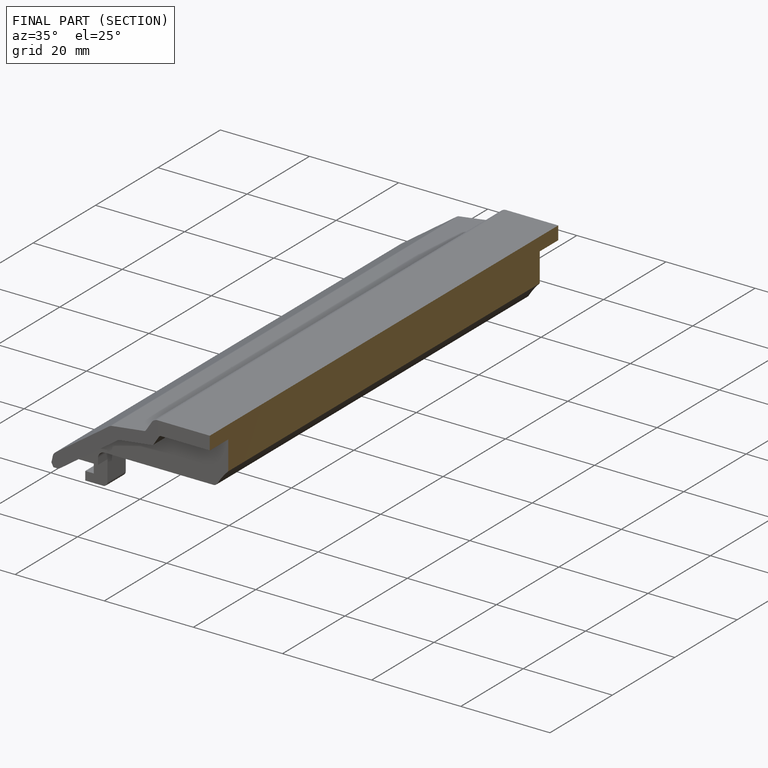
[diagram: finished part — half-section view (interior)]
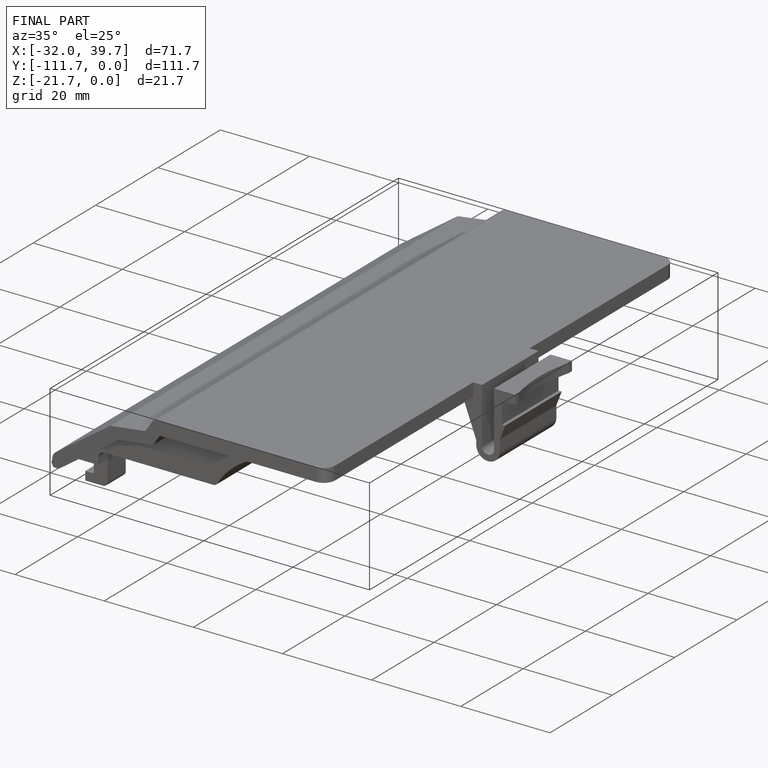
[diagram: finished part — iso view with bounding-box wireframe]
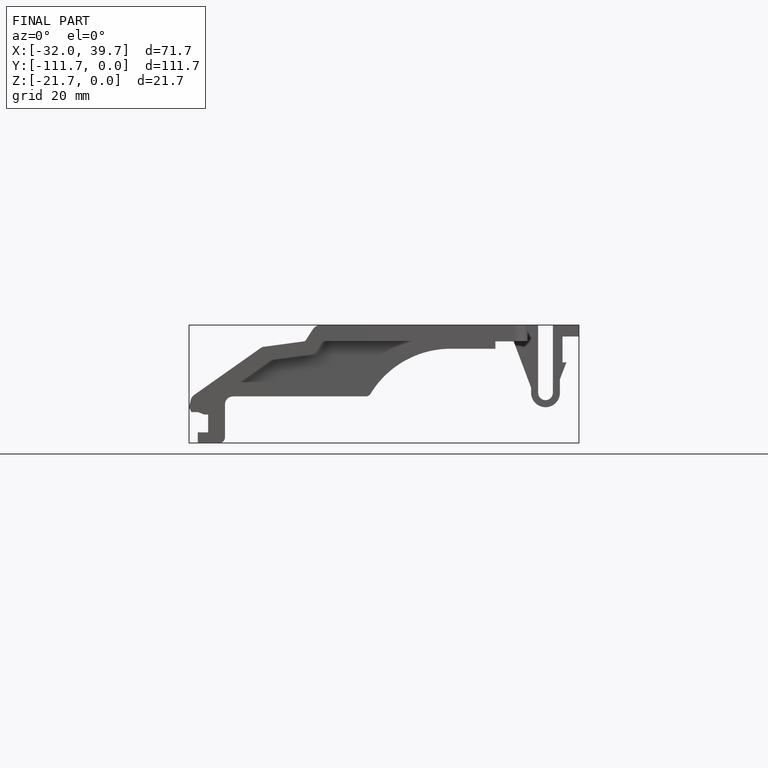
[diagram: finished part — front view with bounding-box wireframe]
